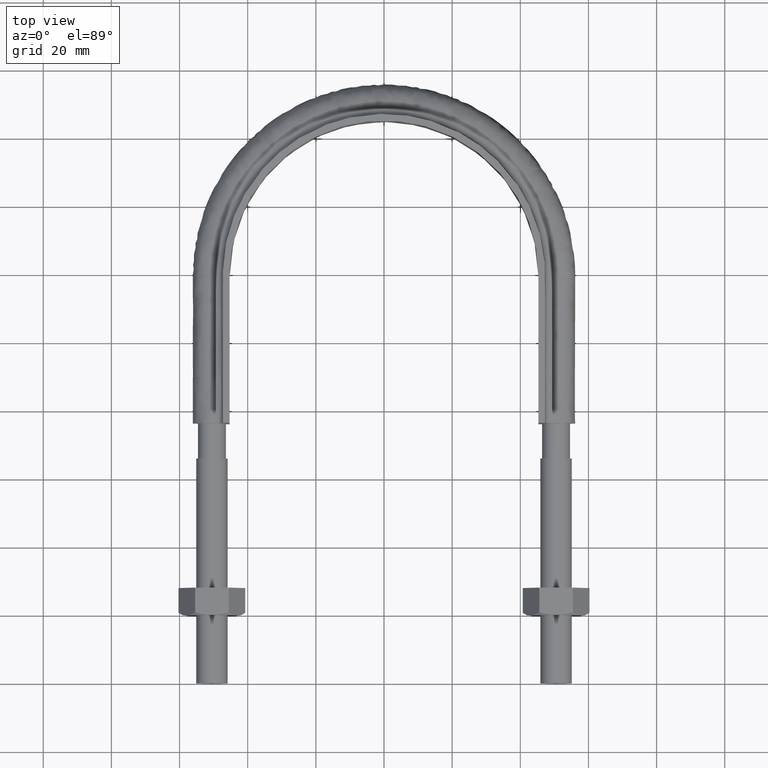
[diagram: clean part render]
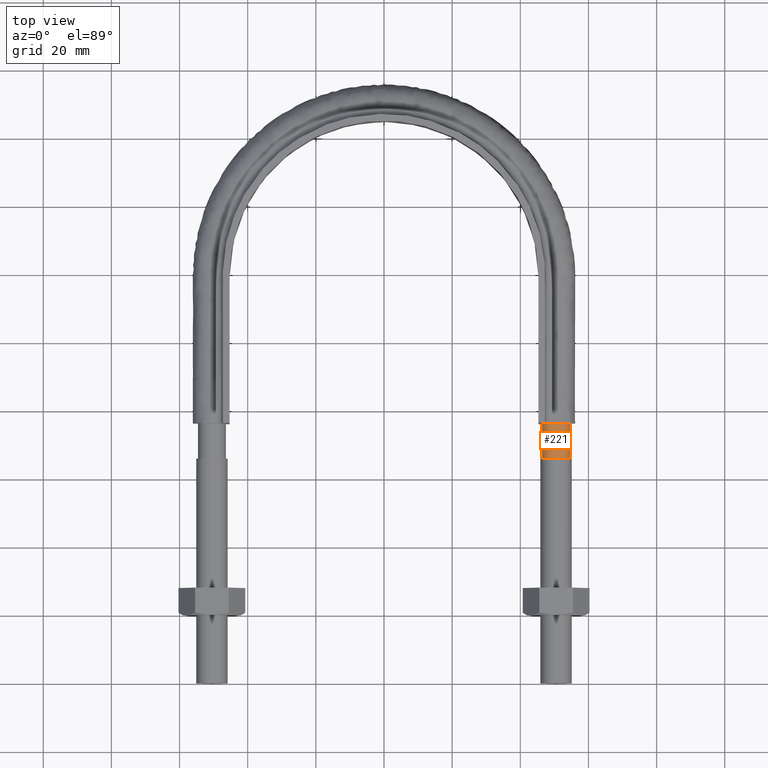
[diagram: same view with one face highlighted and labeled with its STEP entity id]
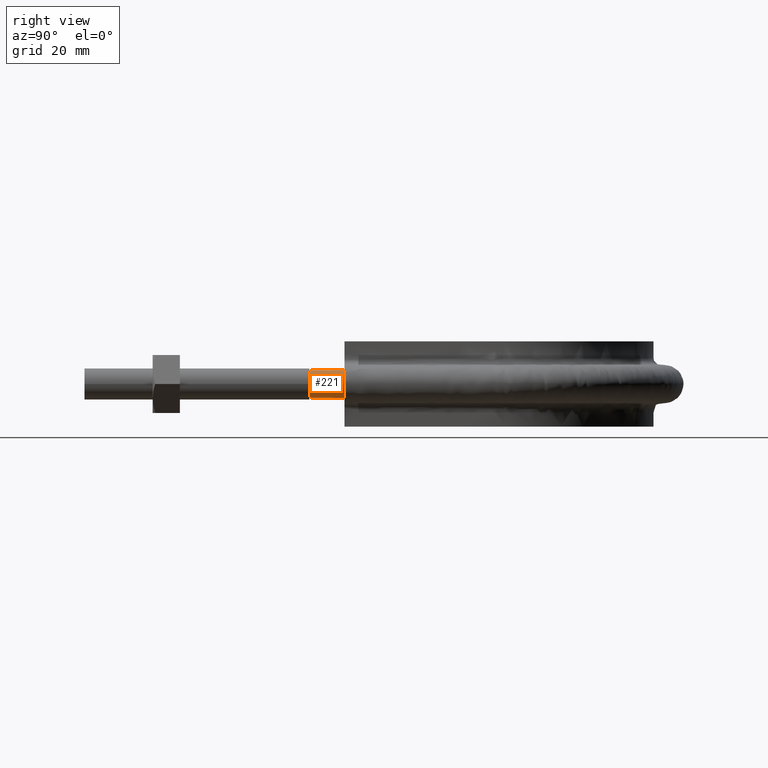
[diagram: same view with one face highlighted and labeled with its STEP entity id]
A machine part, top view. The second image highlights one B-rep face of the part: STEP entity #221.
A second angle (right view) of the same face is appended — the face is thin or edge-on in the first view.
In plain terms, the highlighted cylindrical surface (bore or boss wall) has radius 4.1 mm, axis along (-0, -1, -0).
Its self-contained STEP definition (entity closure, byte-faithful):
#221 = ADVANCED_FACE( '', ( #301, #302 ), #303, .T. );
#301 = FACE_OUTER_BOUND( '', #473, .T. );
#302 = FACE_OUTER_BOUND( '', #474, .T. );
#303 = CYLINDRICAL_SURFACE( '', #475, 4.10000000000000 );
#473 = EDGE_LOOP( '', ( #1470 ) );
#474 = EDGE_LOOP( '', ( #1471, #1472, #1473, #1474, #1475, #1476, #1477 ) );
#475 = AXIS2_PLACEMENT_3D( '', #1478, #1479, #1480 );
#1470 = ORIENTED_EDGE( '', *, *, #2000, .T. );
#1471 = ORIENTED_EDGE( '', *, *, #2001, .T. );
#1472 = ORIENTED_EDGE( '', *, *, #2002, .T. );
#1473 = ORIENTED_EDGE( '', *, *, #2003, .T. );
#1474 = ORIENTED_EDGE( '', *, *, #2004, .T. );
#1475 = ORIENTED_EDGE( '', *, *, #2005, .T. );
#1476 = ORIENTED_EDGE( '', *, *, #2006, .T. );
#1477 = ORIENTED_EDGE( '', *, *, #2007, .T. );
#1478 = CARTESIAN_POINT( '', ( 50.5000000000000, 76.3000000000000, 2.33899813580074E-015 ) );
#1479 = DIRECTION( '', ( -2.44921270764475E-016, -1.00000000000000, -6.12303176911189E-017 ) );
#1480 = DIRECTION( '', ( 1.00000000000000, -2.44921270764475E-016, -7.49830360911069E-033 ) );
#2000 = EDGE_CURVE( '', #2160, #2160, #2161, .T. );
#2001 = EDGE_CURVE( '', #2162, #2163, #2164, .T. );
#2002 = EDGE_CURVE( '', #2163, #2165, #2166, .T. );
#2003 = EDGE_CURVE( '', #2165, #2167, #2168, .T. );
#2004 = EDGE_CURVE( '', #2167, #2169, #2170, .T. );
#2005 = EDGE_CURVE( '', #2169, #2171, #2172, .T. );
#2006 = EDGE_CURVE( '', #2171, #2173, #2174, .T. );
#2007 = EDGE_CURVE( '', #2173, #2162, #2175, .T. );
#2160 = VERTEX_POINT( '', #2413 );
#2161 = CIRCLE( '', #2414, 4.10000000000000 );
#2162 = VERTEX_POINT( '', #2415 );
#2163 = VERTEX_POINT( '', #2416 );
#2164 = CIRCLE( '', #2417, 4.10000000000000 );
#2165 = VERTEX_POINT( '', #2418 );
#2166 = CIRCLE( '', #2419, 4.10000000000000 );
#2167 = VERTEX_POINT( '', #2420 );
#2168 = CIRCLE( '', #2421, 4.10000000000000 );
#2169 = VERTEX_POINT( '', #2422 );
#2170 = CIRCLE( '', #2423, 4.10000000000000 );
#2171 = VERTEX_POINT( '', #2424 );
#2172 = CIRCLE( '', #2425, 4.10000000000000 );
#2173 = VERTEX_POINT( '', #2426 );
#2174 = CIRCLE( '', #2427, 4.10000000000000 );
#2175 = CIRCLE( '', #2428, 4.10000000000000 );
#2413 = CARTESIAN_POINT( '', ( 54.6000000000000, 66.0000000000000, 1.70832586358222E-015 ) );
#2414 = AXIS2_PLACEMENT_3D( '', #3077, #3078, #3079 );
#2415 = CARTESIAN_POINT( '', ( 54.1939723583999, 76.3000000000000, 1.77892333038198 ) );
#2416 = CARTESIAN_POINT( '', ( 51.4123358292208, 76.3000000000000, 3.99720443994551 ) );
#2417 = AXIS2_PLACEMENT_3D( '', #3080, #3081, #3082 );
#2418 = CARTESIAN_POINT( '', ( 47.9436918123790, 76.3000000000000, 3.20550907811873 ) );
#2419 = AXIS2_PLACEMENT_3D( '', #3083, #3084, #3085 );
#2420 = CARTESIAN_POINT( '', ( 46.4000000000000, 76.3000000000000, 4.33680868994202E-016 ) );
#2421 = AXIS2_PLACEMENT_3D( '', #3086, #3087, #3088 );
#2422 = CARTESIAN_POINT( '', ( 47.9436918123792, 76.3000000000000, -3.20550907811892 ) );
#2423 = AXIS2_PLACEMENT_3D( '', #3089, #3090, #3091 );
#2424 = CARTESIAN_POINT( '', ( 51.4123358292205, 76.3000000000000, -3.99720443994556 ) );
#2425 = AXIS2_PLACEMENT_3D( '', #3092, #3093, #3094 );
#2426 = CARTESIAN_POINT( '', ( 54.1939723583998, 76.3000000000000, -1.77892333038233 ) );
#2427 = AXIS2_PLACEMENT_3D( '', #3095, #3096, #3097 );
#2428 = AXIS2_PLACEMENT_3D( '', #3098, #3099, #3100 );
#3077 = CARTESIAN_POINT( '', ( 50.5000000000000, 66.0000000000000, 1.70832586358222E-015 ) );
#3078 = DIRECTION( '', ( 2.44921270764476E-016, 1.00000000000000, 6.12303176911189E-017 ) );
#3079 = DIRECTION( '', ( 1.00000000000000, -2.44921270764476E-016, 0.000000000000000 ) );
#3080 = CARTESIAN_POINT( '', ( 50.5000000000000, 76.3000000000000, 2.33899813580074E-015 ) );
#3081 = DIRECTION( '', ( -2.44921270764475E-016, -1.00000000000000, -6.12303176911189E-017 ) );
#3082 = DIRECTION( '', ( 1.00000000000000, -2.44921270764475E-016, -7.49830360911069E-033 ) );
#3083 = CARTESIAN_POINT( '', ( 50.5000000000000, 76.3000000000000, 2.33899813580074E-015 ) );
#3084 = DIRECTION( '', ( -2.44921270764475E-016, -1.00000000000000, -6.12303176911189E-017 ) );
#3085 = DIRECTION( '', ( 1.00000000000000, -2.44921270764475E-016, -7.49830360911069E-033 ) );
#3086 = CARTESIAN_POINT( '', ( 50.5000000000000, 76.3000000000000, 2.33899813580074E-015 ) );
#3087 = DIRECTION( '', ( -2.44921270764475E-016, -1.00000000000000, -6.12303176911189E-017 ) );
#3088 = DIRECTION( '', ( 1.00000000000000, -2.44921270764475E-016, -7.49830360911069E-033 ) );
#3089 = CARTESIAN_POINT( '', ( 50.5000000000000, 76.3000000000000, 2.33899813580074E-015 ) );
#3090 = DIRECTION( '', ( -2.44921270764475E-016, -1.00000000000000, -6.12303176911189E-017 ) );
#3091 = DIRECTION( '', ( 1.00000000000000, -2.44921270764475E-016, -7.49830360911069E-033 ) );
#3092 = CARTESIAN_POINT( '', ( 50.5000000000000, 76.3000000000000, 2.33899813580074E-015 ) );
#3093 = DIRECTION( '', ( -2.44921270764475E-016, -1.00000000000000, -6.12303176911189E-017 ) );
#3094 = DIRECTION( '', ( 1.00000000000000, -2.44921270764475E-016, -7.49830360911069E-033 ) );
#3095 = CARTESIAN_POINT( '', ( 50.5000000000000, 76.3000000000000, 2.33899813580074E-015 ) );
#3096 = DIRECTION( '', ( -2.44921270764475E-016, -1.00000000000000, -6.12303176911189E-017 ) );
#3097 = DIRECTION( '', ( 1.00000000000000, -2.44921270764475E-016, -7.49830360911069E-033 ) );
#3098 = CARTESIAN_POINT( '', ( 50.5000000000000, 76.3000000000000, 2.33899813580074E-015 ) );
#3099 = DIRECTION( '', ( -2.44921270764475E-016, -1.00000000000000, -6.12303176911189E-017 ) );
#3100 = DIRECTION( '', ( 1.00000000000000, -2.44921270764475E-016, -7.49830360911069E-033 ) );